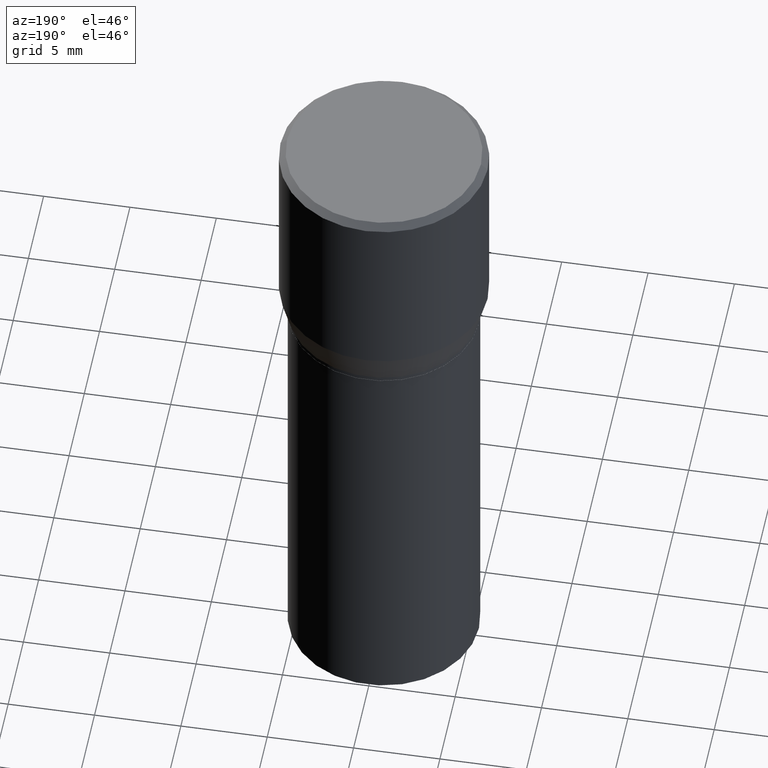
[diagram: clean part render]
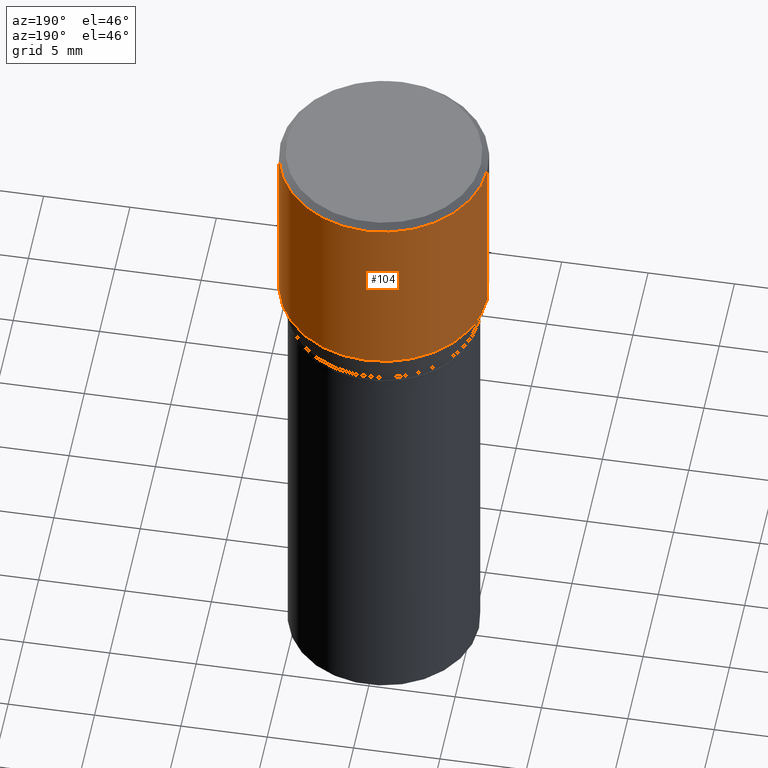
[diagram: same view with one face highlighted and labeled with its STEP entity id]
A machine part, auxiliary view. The second image highlights one B-rep face of the part: STEP entity #104.
In plain terms, the highlighted cylindrical surface (partial cylindrical patch) has radius 5.9995 mm, axis along (-0, 0, 1).
Its self-contained STEP definition (entity closure, byte-faithful):
#12 = VERTEX_POINT ( 'NONE', #344 ) ;
#19 = EDGE_CURVE ( 'NONE', #221, #440, #430, .T. ) ;
#34 = DIRECTION ( 'NONE',  ( -2.445468806185136597E-29, 3.491481338843145583E-15, 1.000000000000000000 ) ) ;
#43 = CARTESIAN_POINT ( 'NONE',  ( 3.668203209277705088E-31, -5.237222008264718399E-17, -0.01499999999999999944 ) ) ;
#47 = AXIS2_PLACEMENT_3D ( 'NONE', #207, #388, #97 ) ;
#57 = AXIS2_PLACEMENT_3D ( 'NONE', #43, #190, #212 ) ;
#90 = ORIENTED_EDGE ( 'NONE', *, *, #429, .F. ) ;
#97 = DIRECTION ( 'NONE',  ( 1.000000000000000000, -6.982962677686266711E-15, 4.876176775795936353E-29 ) ) ;
#101 = CIRCLE ( 'NONE', #57, 0.2361999999999999933 ) ;
#104 = ADVANCED_FACE ( 'NONE', ( #391 ), #271, .T. ) ;
#111 = CARTESIAN_POINT ( 'NONE',  ( 1.057335613469222465E-29, -1.509595033060740104E-15, -0.4323652016312719559 ) ) ;
#153 = EDGE_LOOP ( 'NONE', ( #259, #381, #191, #90 ) ) ;
#170 = DIRECTION ( 'NONE',  ( -2.445468806185136877E-29, 3.491481338843145188E-15, 1.000000000000000000 ) ) ;
#190 = DIRECTION ( 'NONE',  ( -2.445468806185136597E-29, 3.491481338843145583E-15, 1.000000000000000000 ) ) ;
#191 = ORIENTED_EDGE ( 'NONE', *, *, #337, .F. ) ;
#202 = AXIS2_PLACEMENT_3D ( 'NONE', #111, #34, #332 ) ;
#207 = CARTESIAN_POINT ( 'NONE',  ( 0.000000000000000000, 0.000000000000000000, 0.000000000000000000 ) ) ;
#212 = DIRECTION ( 'NONE',  ( 1.000000000000000000, -6.982962677686266711E-15, 0.000000000000000000 ) ) ;
#221 = VERTEX_POINT ( 'NONE', #247 ) ;
#229 = VECTOR ( 'NONE', #319, 39.37007874015748143 ) ;
#247 = CARTESIAN_POINT ( 'NONE',  ( -0.2361999999999999933, 1.687069088046165861E-16, -0.4323652016312719559 ) ) ;
#259 = ORIENTED_EDGE ( 'NONE', *, *, #321, .T. ) ;
#271 = CYLINDRICAL_SURFACE ( 'NONE', #47, 0.2361999999999999933 ) ;
#277 = CARTESIAN_POINT ( 'NONE',  ( -0.2361999999999999933, 1.678301941865356591E-15, -1.161852468318208757E-29 ) ) ;
#282 = CARTESIAN_POINT ( 'NONE',  ( -0.2361999999999999933, 8.973183152936629998E-16, -0.01499999999999999944 ) ) ;
#283 = CARTESIAN_POINT ( 'NONE',  ( 0.2361999999999999933, -1.701748004552143407E-15, -0.01499999999999999944 ) ) ;
#319 = DIRECTION ( 'NONE',  ( -2.445468806185136877E-29, 3.491481338843145188E-15, 1.000000000000000000 ) ) ;
#321 = EDGE_CURVE ( 'NONE', #12, #221, #416, .T. ) ;
#332 = DIRECTION ( 'NONE',  ( 1.000000000000000000, -6.982962677686266711E-15, 0.000000000000000000 ) ) ;
#337 = EDGE_CURVE ( 'NONE', #340, #440, #101, .T. ) ;
#340 = VERTEX_POINT ( 'NONE', #283 ) ;
#344 = CARTESIAN_POINT ( 'NONE',  ( 0.2361999999999999933, -3.158970817530236235E-15, -0.4323652016312719559 ) ) ;
#381 = ORIENTED_EDGE ( 'NONE', *, *, #19, .T. ) ;
#384 = VECTOR ( 'NONE', #170, 39.37007874015748143 ) ;
#388 = DIRECTION ( 'NONE',  ( -2.445468806185136597E-29, 3.491481338843145583E-15, 1.000000000000000000 ) ) ;
#391 = FACE_OUTER_BOUND ( 'NONE', #153, .T. ) ;
#401 = CARTESIAN_POINT ( 'NONE',  ( 0.2361999999999999933, -1.649375784469496131E-15, 1.151752954443000088E-29 ) ) ;
#416 = CIRCLE ( 'NONE', #202, 0.2361999999999999933 ) ;
#429 = EDGE_CURVE ( 'NONE', #12, #340, #435, .T. ) ;
#430 = LINE ( 'NONE', #277, #384 ) ;
#435 = LINE ( 'NONE', #401, #229 ) ;
#440 = VERTEX_POINT ( 'NONE', #282 ) ;